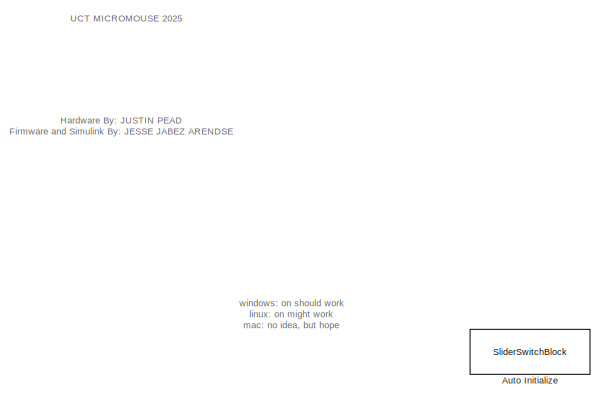
[diagram: root canvas - part 1/2, top left region]
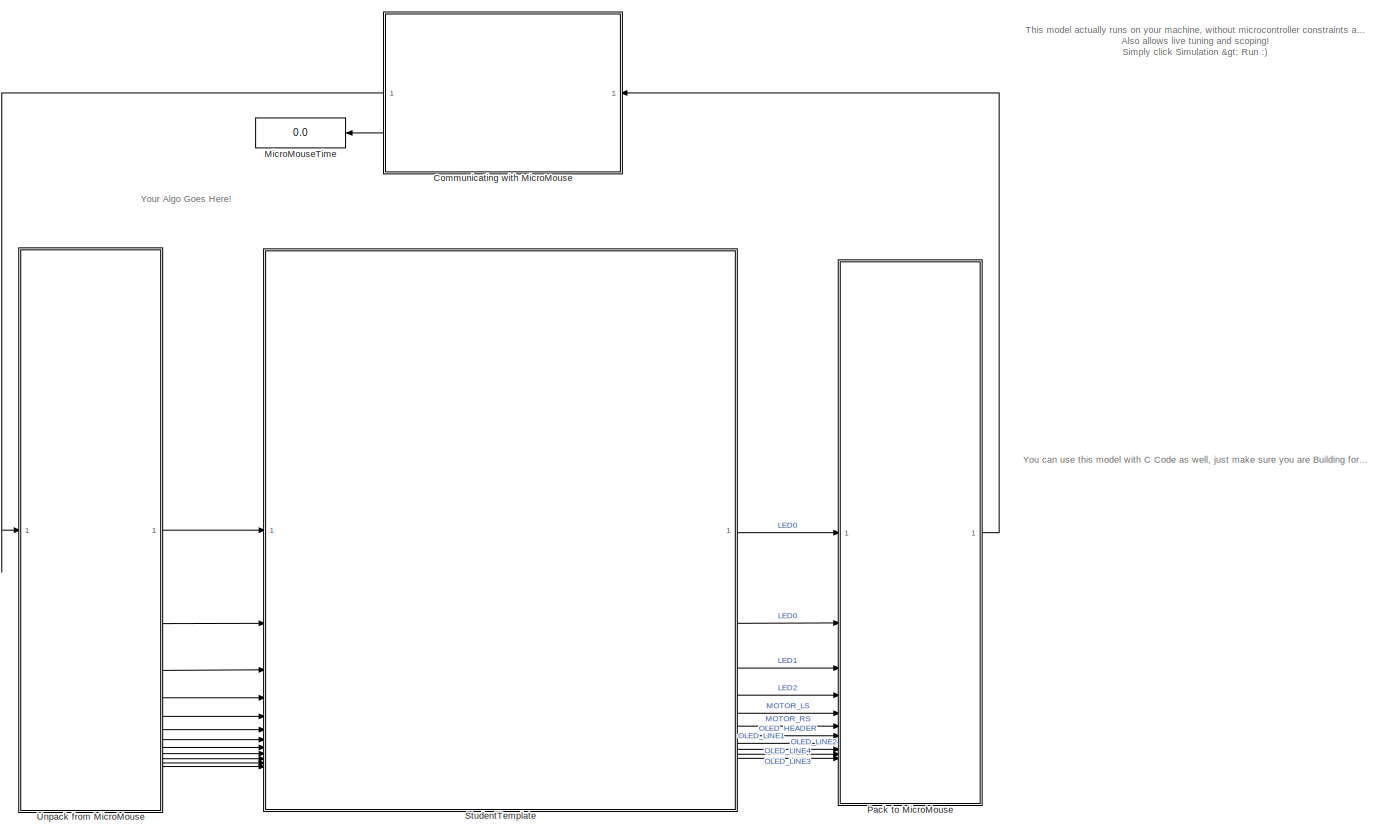
[diagram: root canvas - part 2/2, full width, middle band]
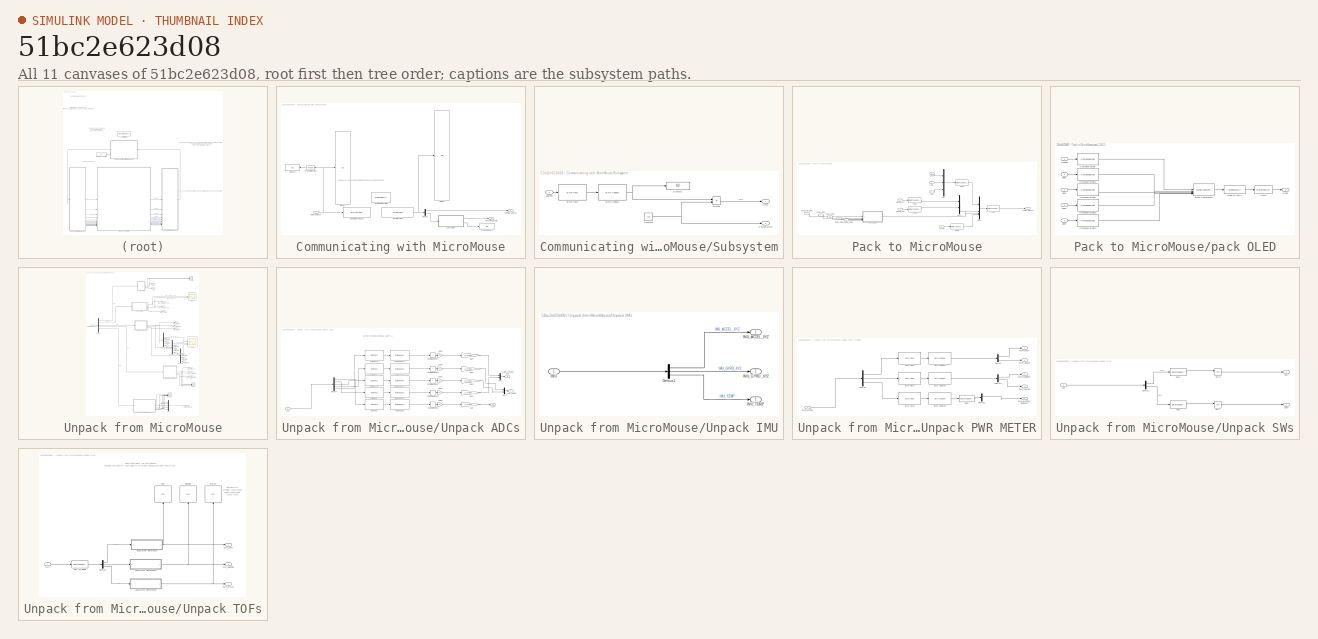
[diagram: thumbnail index - all 11 canvases of the model, root first then tree order]
MODEL slx_51bc2e623d08
KIND model
CONFIG AbsTol = auto
CONFIG EnableMultiTasking = off
CONFIG FixedStep = auto
CONFIG InitFcn = addpath(genpath(pwd));\nauto_program("MicroMouseProgramming_Code\build\release\MicroMouseProgramming")\nSTLINK_COMPORT = auto_COMPORT()\n\nclearvars -except STLINK_COMPORT STLINK_DRIVE STM32_ODR\n
CONFIG MaxStep = auto
CONFIG MinStep = auto
CONFIG PreLoadFcn = addpath(genpath(pwd))
CONFIG RelTol = 1e-3
CONFIG SampleTimeConstraint = Unconstrained
CONFIG SolverName = FixedStepAuto
CONFIG StartTime = 0.0
CONFIG StopTime = inf
BLOCK [SliderSwitchBlock] Auto Initialize
  LabelPosition = Hide
BLOCK [SubSystem] Communicating with MicroMouse
BLOCK [Demux] Communicating with MicroMouse/Demux1
  Outputs = [29 1]
BLOCK [Display] Communicating with MicroMouse/Display
  Decimation = 1
BLOCK [Display] Communicating with MicroMouse/Display1
  Decimation = 1
BLOCK [Display] Communicating with MicroMouse/Display2
  Decimation = 1
  NameLocation = top
BLOCK [Outport] Communicating with MicroMouse/MicroMouseTime
  Port = 2
BLOCK [Probe] Communicating with MicroMouse/Probe Dimension
  NameLocation = top
  ProbeComplexSignal = off
  ProbeSampleTime = off
  ProbeSignalDimensions = on
  ProbeWidth = off
BLOCK [Display] Communicating with MicroMouse/STM32 ODR (Hz)
  Decimation = 1
BLOCK [MATLABSystem] Communicating with MicroMouse/Send to MicroMouse
  ComPort = STLINK_COMPORT
  CustomTerminator = 'A_J'
  EnableBlockingMode = off
  Header = 'J_A'
  MaskType = CustomSerialSend
  PortSel = STLINK_COMPORT
  SimulateUsing = Interpreted execution
  System = CustomSerialSend
  Terminator = Custom terminator
BLOCK [Reference] Communicating with MicroMouse/Serial Configuration  REF=instrumentseriallib/Serial Configuration
  LibrarySourceBlock = embeddedtargetslib/Host Communication/Serial Configuration
  Priority = -200000
  SourceBlock = instrumentseriallib/Serial Configuration
  SourceType = system.SerialConfiguration
BLOCK [Reference] Communicating with MicroMouse/Serial Receive  REF=instrumentseriallib/Serial Receive
  LibrarySourceBlock = embeddedtargetslib/Host Communication/Serial Receive
  Priority = 1
  SourceBlock = instrumentseriallib/Serial Receive
  SourceType = system.SerialReceive
BLOCK [SubSystem] Communicating with MicroMouse/Subsystem
BLOCK [Reference] Communicating with MicroMouse/Subsystem/Byte Pack  REF=etargetslib/Byte Pack
  LibrarySourceBlock = embeddedtargetslib/Host Communication/Byte Pack
  SourceBlock = etargetslib/Byte Pack
  SourceType = Byte pack
BLOCK [Reference] Communicating with MicroMouse/Subsystem/Byte Unpack  REF=etargetslib/Byte Unpack
  LibrarySourceBlock = embeddedtargetslib/Host Communication/Byte Unpack
  SourceBlock = etargetslib/Byte Unpack
  SourceType = Byte Unpack
BLOCK [Constant] Communicating with MicroMouse/Subsystem/Constant
  Value = 100
BLOCK [Display] Communicating with MicroMouse/Subsystem/Display1
  Decimation = 1
BLOCK [Product] Communicating with MicroMouse/Subsystem/Divide
  Inputs = */
BLOCK [Outport] Communicating with MicroMouse/Subsystem/STM32_ODR
  Port = 2
BLOCK [Inport] Communicating with MicroMouse/Subsystem/counter
BLOCK [Outport] Communicating with MicroMouse/Subsystem/time
BLOCK [Outport] Communicating with MicroMouse/fromMicroMouse
BLOCK [Inport] Communicating with MicroMouse/toMicroMouse
BLOCK [Display] MicroMouseTime
  Decimation = 2
  NameLocation = top
BLOCK [SubSystem] Pack to MicroMouse
BLOCK [DataTypeConversion] Pack to MicroMouse/Cast
  NameLocation = top
  OutDataTypeStr = int8
  RndMeth = Floor
  SaturateOnIntegerOverflow = off
BLOCK [DataTypeConversion] Pack to MicroMouse/Cast1
  OutDataTypeStr = int8
  RndMeth = Floor
  SaturateOnIntegerOverflow = off
BLOCK [DataTypeConversion] Pack to MicroMouse/Cast2
  OutDataTypeStr = int8
  RndMeth = Floor
  SaturateOnIntegerOverflow = off
BLOCK [DataTypeConversion] Pack to MicroMouse/Cast3
  OutDataTypeStr = int8
  RndMeth = Floor
  SaturateOnIntegerOverflow = off
BLOCK [DataTypeConversion] Pack to MicroMouse/Cast4
  NameLocation = top
  OutDataTypeStr = int8
  RndMeth = Floor
  SaturateOnIntegerOverflow = off
BLOCK [Inport] Pack to MicroMouse/LED0
  Port = 2
BLOCK [Inport] Pack to MicroMouse/LED1
  Port = 3
BLOCK [Inport] Pack to MicroMouse/LED2
  Port = 4
BLOCK [Inport] Pack to MicroMouse/MOTOR_LS
  Port = 5
BLOCK [Inport] Pack to MicroMouse/MOTOR_RS
  Port = 6
BLOCK [Mux] Pack to MicroMouse/Mux
  DisplayOption = bar
  Inputs = 3
BLOCK [Mux] Pack to MicroMouse/Mux1
  DisplayOption = bar
BLOCK [Mux] Pack to MicroMouse/Mux2
  DisplayOption = bar
  Inputs = 2
BLOCK [Inport] Pack to MicroMouse/OLED_HEADER
  OutDataTypeStr = string
  Port = 7
  VarSizeSig = No
BLOCK [Inport] Pack to MicroMouse/OLED_LINE1
  OutDataTypeStr = string
  Port = 8
  VarSizeSig = No
BLOCK [Inport] Pack to MicroMouse/OLED_LINE2
  OutDataTypeStr = string
  Port = 9
  VarSizeSig = No
BLOCK [Inport] Pack to MicroMouse/OLED_LINE3
  OutDataTypeStr = string
  Port = 10
  VarSizeSig = No
BLOCK [Inport] Pack to MicroMouse/OLED_LINE4
  OutDataTypeStr = string
  Port = 11
  VarSizeSig = No
BLOCK [Inport] Pack to MicroMouse/STATE
BLOCK [Outport] Pack to MicroMouse/ToMicroMouse
  NameLocation = top
BLOCK [SubSystem] Pack to MicroMouse/pack OLED
BLOCK [DataTypeConversion] Pack to MicroMouse/pack OLED/Cast4
  OutDataTypeStr = int8
  RndMeth = Floor
  SaturateOnIntegerOverflow = off
BLOCK [ComposeString] Pack to MicroMouse/pack OLED/Compose String
  Format = "%-18s"
BLOCK [ComposeString] Pack to MicroMouse/pack OLED/Compose String1
  Format = "%-18s"
BLOCK [ComposeString] Pack to MicroMouse/pack OLED/Compose String2
  Format = "%-18s"
BLOCK [ComposeString] Pack to MicroMouse/pack OLED/Compose String3
  Format = "%-18s"
BLOCK [ComposeString] Pack to MicroMouse/pack OLED/Compose String4
  Format = "%-18s"
BLOCK [Inport] Pack to MicroMouse/pack OLED/Header
  PortDimensions = 1
BLOCK [Inport] Pack to MicroMouse/pack OLED/Line1
  Port = 2
BLOCK [Inport] Pack to MicroMouse/pack OLED/Line2
  Port = 3
BLOCK [Inport] Pack to MicroMouse/pack OLED/Line3
  Port = 4
BLOCK [Inport] Pack to MicroMouse/pack OLED/Line4
  Port = 5
BLOCK [Outport] Pack to MicroMouse/pack OLED/OLED
BLOCK [StringConcatenate] Pack to MicroMouse/pack OLED/String Concatenate
  Inputs = 5
BLOCK [StringToASCII] Pack to MicroMouse/pack OLED/String to ASCII
  OutputVectorSize = 18*5
BLOCK [SubSystem] StudentTemplate
  ReferencedSubsystem = StudentTemplate
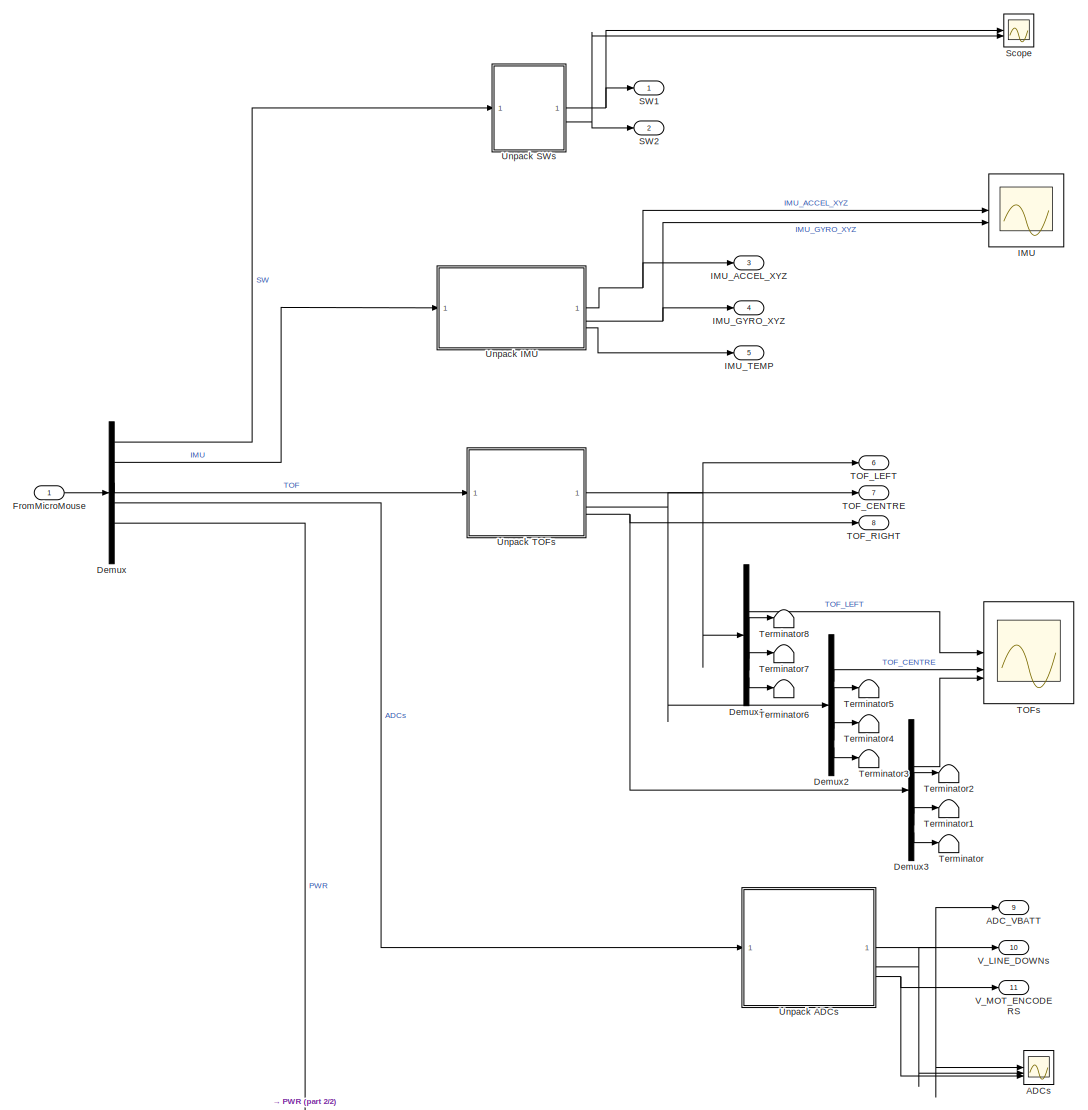
[diagram: Unpack from MicroMouse - part 1/2, most of the canvas]
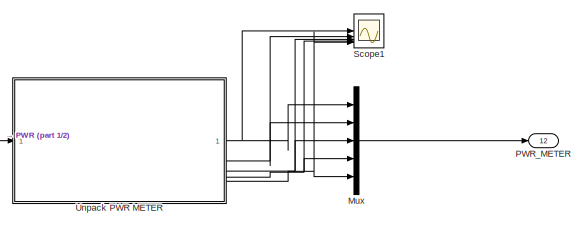
[diagram: Unpack from MicroMouse - part 2/2, bottom right region]
BLOCK [SubSystem] Unpack from MicroMouse
BLOCK [Outport] Unpack from MicroMouse/ADC_VBATT
  Port = 9
BLOCK [Scope] Unpack from MicroMouse/ADCs
  ActiveDisplayYMaximum = 3.14
  ActiveDisplayYMinimum = 3.13868
  DataLoggingVariableName = ScopeData1
  Floating = off
  GraphicalSettings = {"GraphicalSettings":{"LegacySettings":true,"Style":{"Style":{"AxesColor":"[0 0 0]","ChannelNames":["","",""],"ColorOrder":"[1 0.909803921568627 0.392156862745098;0.149019607843137 0.549019607843137 0.866666666666667;0.96078431372549 0.466666666666667 0.16078431372549;0.286274509803922 0.858823529411765 0.250980392156863;0.752941176470588 0.36078431372549 0.984313725490196;0.423529411764706 0.9568...<+560ch>
  LayoutDimensionsString = [3 1]
  MultipleDisplayCache = [{"MaxYLimMag":3.14,"MaxYLimReal":3.14,"MinYLimMag":3.13868,"MinYLimReal":3.13868,"PlotAsMagnitudePhase":false,"ShowGrid":true,"ShowLegend":false,"Title":"%<SignalLabel>","YLabel":""},{"MaxYLimMag":15269.52722,"MaxYLimReal":1.85537,"MinYLimMag":0,"MinYLimReal":-0.20615,"PlotAsMagnitudePhase":false,"ShowGrid":true,"ShowLegend":false,"Title":"%<SignalLabel>","YLabel":""},{"MaxYLimMag":15269.52722,"M...<+160ch>
  NumInputPorts = 3
  WasSavedAsWebScope = on
BLOCK [Demux] Unpack from MicroMouse/Demux
  Outputs = [2 7 3*4 5 3]
BLOCK [Demux] Unpack from MicroMouse/Demux1
BLOCK [Demux] Unpack from MicroMouse/Demux2
BLOCK [Demux] Unpack from MicroMouse/Demux3
BLOCK [Inport] Unpack from MicroMouse/FromMicroMouse
  NameLocation = top
BLOCK [Scope] Unpack from MicroMouse/IMU
  ActiveDisplayYMaximum = 196.12642
  ActiveDisplayYMinimum = -196.12162
  DataLoggingVariableName = ScopeData1
  Floating = off
  GraphicalSettings = {"GraphicalSettings":{"LegacySettings":true,"Style":{"AxesScalingProperties":{"ScaleAxesLimitsAtStop":false},"Style":{"AxesColor":"[0 0 0]","ChannelNames":["",""],"ColorOrder":"[1 0.909803921568627 0.392156862745098;0.149019607843137 0.549019607843137 0.866666666666667;0.96078431372549 0.466666666666667 0.16078431372549;0.286274509803922 0.858823529411765 0.250980392156863;0.752941176470588 0.3607...<+618ch>
  LayoutDimensionsString = [2 1]
  MultipleDisplayCache = [{"MaxYLimMag":196.12642,"MaxYLimReal":196.12642,"MinYLimMag":0,"MinYLimReal":-196.12162,"PlotAsMagnitudePhase":false,"ShowGrid":true,"ShowLegend":false,"Title":"%<SignalLabel>","YLabel":""},{"MaxYLimMag":20.09603,"MaxYLimReal":21.7946,"MinYLimMag":0,"MinYLimReal":-21.79407,"PlotAsMagnitudePhase":false,"ShowGrid":true,"ShowLegend":false,"Title":"%<SignalLabel>","YLabel":""}]
  NumInputPorts = 2
  WasSavedAsWebScope = on
BLOCK [Outport] Unpack from MicroMouse/IMU_ACCEL_XYZ
  Port = 3
BLOCK [Outport] Unpack from MicroMouse/IMU_GYRO_XYZ
  Port = 4
BLOCK [Outport] Unpack from MicroMouse/IMU_TEMP
  Port = 5
BLOCK [Mux] Unpack from MicroMouse/Mux
  DisplayOption = bar
  Inputs = 5
BLOCK [Outport] Unpack from MicroMouse/PWR_METER
  Port = 12
BLOCK [Outport] Unpack from MicroMouse/SW1
BLOCK [Outport] Unpack from MicroMouse/SW2
  Port = 2
BLOCK [Scope] Unpack from MicroMouse/Scope
  ActiveDisplayYMaximum = 1.1
  ActiveDisplayYMinimum = 0.9
  DataLoggingVariableName = ScopeData1
  Floating = off
  GraphicalSettings = {"GraphicalSettings":{"LegacySettings":true,"Style":{"Style":{"AxesColor":"[0 0 0]","ChannelNames":[""],"ColorOrder":"[1 0.909803921568627 0.392156862745098;0.149019607843137 0.549019607843137 0.866666666666667;0.96078431372549 0.466666666666667 0.16078431372549;0.286274509803922 0.858823529411765 0.250980392156863;0.752941176470588 0.36078431372549 0.984313725490196;0.423529411764706 0.9568627450...<+435ch>
  MultipleDisplayCache = [{"MaxYLimMag":1.1,"MaxYLimReal":1.1,"MinYLimMag":0.9,"MinYLimReal":0.9,"PlotAsMagnitudePhase":false,"ShowGrid":true,"ShowLegend":false,"Title":"%<SignalLabel>","YLabel":""}]
  NumInputPorts = 2
  WasSavedAsWebScope = on
BLOCK [Scope] Unpack from MicroMouse/Scope1
  ActiveDisplayYMaximum = 30696.125
  ActiveDisplayYMinimum = 864.875
  DataLoggingVariableName = ScopeData2
  Floating = off
  GraphicalSettings = {"GraphicalSettings":{"LegacySettings":true,"Style":{"Style":{"AxesColor":"[0 0 0]","ChannelNames":["","","","","",""],"ColorOrder":"[1 0.909803921568627 0.392156862745098;0.149019607843137 0.549019607843137 0.866666666666667;0.96078431372549 0.466666666666667 0.16078431372549;0.286274509803922 0.858823529411765 0.250980392156863;0.752941176470588 0.36078431372549 0.984313725490196;0.4235294117647...<+644ch>
  LayoutDimensionsString = [2 3]
  MultipleDisplayCache = [{"MaxYLimMag":30696.125,"MaxYLimReal":30696.125,"MinYLimMag":864.875,"MinYLimReal":864.875,"PlotAsMagnitudePhase":false,"ShowGrid":true,"ShowLegend":true,"Title":"%<SignalLabel>","YLabel":""},{"MaxYLimMag":3990.375,"MaxYLimReal":24.5,"MinYLimMag":0,"MinYLimReal":-0.5,"PlotAsMagnitudePhase":false,"ShowGrid":true,"ShowLegend":true,"Title":"%<SignalLabel>","YLabel":""},{"MaxYLimMag":3990.375,"MaxYLi...<+683ch>
  NumInputPorts = 5
  ShowLegend = on
  WasSavedAsWebScope = on
BLOCK [Outport] Unpack from MicroMouse/TOF_CENTRE
  Port = 7
BLOCK [Outport] Unpack from MicroMouse/TOF_LEFT
  Port = 6
BLOCK [Outport] Unpack from MicroMouse/TOF_RIGHT
  Port = 8
BLOCK [Scope] Unpack from MicroMouse/TOFs
  ActiveDisplayYMaximum = 0.44888
  ActiveDisplayYMinimum = 0.02013
  DataLoggingVariableName = ScopeData1
  Floating = off
  GraphicalSettings = {"GraphicalSettings":{"LegacySettings":true,"Style":{"AxesScalingProperties":{"ScaleAxesLimitsAtStop":false},"Style":{"AxesColor":"[0 0 0]","ChannelNames":["","",""],"ColorOrder":"[1 0.909803921568627 0.392156862745098;0.149019607843137 0.549019607843137 0.866666666666667;0.96078431372549 0.466666666666667 0.16078431372549;0.286274509803922 0.858823529411765 0.250980392156863;0.752941176470588 0.3...<+633ch>
  LayoutDimensionsString = [3 1]
  MultipleDisplayCache = [{"MaxYLimMag":0.44888,"MaxYLimReal":0.44888,"MinYLimMag":0.02013,"MinYLimReal":0.02013,"PlotAsMagnitudePhase":false,"ShowGrid":true,"ShowLegend":false,"Title":"%<SignalLabel>","YLabel":""},{"MaxYLimMag":0.18013,"MaxYLimReal":0.27338,"MinYLimMag":0.02887,"MinYLimReal":0.01963,"PlotAsMagnitudePhase":false,"ShowGrid":true,"ShowLegend":false,"Title":"%<SignalLabel>","YLabel":""},{"MaxYLimMag":0.18013...<+166ch>
  NumInputPorts = 3
  WasSavedAsWebScope = on
BLOCK [Terminator] Unpack from MicroMouse/Terminator
BLOCK [Terminator] Unpack from MicroMouse/Terminator1
BLOCK [Terminator] Unpack from MicroMouse/Terminator2
BLOCK [Terminator] Unpack from MicroMouse/Terminator3
BLOCK [Terminator] Unpack from MicroMouse/Terminator4
BLOCK [Terminator] Unpack from MicroMouse/Terminator5
BLOCK [Terminator] Unpack from MicroMouse/Terminator6
BLOCK [Terminator] Unpack from MicroMouse/Terminator7
BLOCK [Terminator] Unpack from MicroMouse/Terminator8
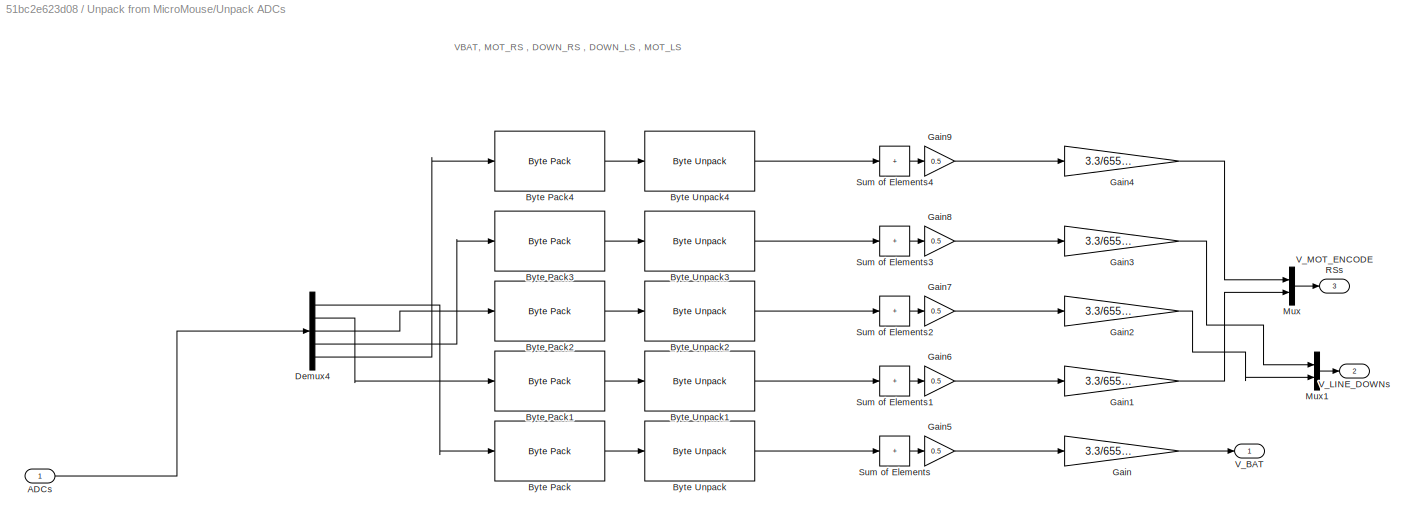
BLOCK [SubSystem] Unpack from MicroMouse/Unpack ADCs
BLOCK [Inport] Unpack from MicroMouse/Unpack ADCs/ADCs
  NameLocation = top
BLOCK [Reference] Unpack from MicroMouse/Unpack ADCs/Byte Pack  REF=etargetslib/Byte Pack
  LibrarySourceBlock = embeddedtargetslib/Host Communication/Byte Pack
  SourceBlock = etargetslib/Byte Pack
  SourceType = Byte pack
BLOCK [Reference] Unpack from MicroMouse/Unpack ADCs/Byte Pack1  REF=etargetslib/Byte Pack
  LibrarySourceBlock = embeddedtargetslib/Host Communication/Byte Pack
  SourceBlock = etargetslib/Byte Pack
  SourceType = Byte pack
BLOCK [Reference] Unpack from MicroMouse/Unpack ADCs/Byte Pack2  REF=etargetslib/Byte Pack
  LibrarySourceBlock = embeddedtargetslib/Host Communication/Byte Pack
  SourceBlock = etargetslib/Byte Pack
  SourceType = Byte pack
BLOCK [Reference] Unpack from MicroMouse/Unpack ADCs/Byte Pack3  REF=etargetslib/Byte Pack
  LibrarySourceBlock = embeddedtargetslib/Host Communication/Byte Pack
  SourceBlock = etargetslib/Byte Pack
  SourceType = Byte pack
BLOCK [Reference] Unpack from MicroMouse/Unpack ADCs/Byte Pack4  REF=etargetslib/Byte Pack
  LibrarySourceBlock = embeddedtargetslib/Host Communication/Byte Pack
  SourceBlock = etargetslib/Byte Pack
  SourceType = Byte pack
BLOCK [Reference] Unpack from MicroMouse/Unpack ADCs/Byte Unpack  REF=etargetslib/Byte Unpack
  LibrarySourceBlock = embeddedtargetslib/Host Communication/Byte Unpack
  SourceBlock = etargetslib/Byte Unpack
  SourceType = Byte Unpack
BLOCK [Reference] Unpack from MicroMouse/Unpack ADCs/Byte Unpack1  REF=etargetslib/Byte Unpack
  LibrarySourceBlock = embeddedtargetslib/Host Communication/Byte Unpack
  SourceBlock = etargetslib/Byte Unpack
  SourceType = Byte Unpack
BLOCK [Reference] Unpack from MicroMouse/Unpack ADCs/Byte Unpack2  REF=etargetslib/Byte Unpack
  LibrarySourceBlock = embeddedtargetslib/Host Communication/Byte Unpack
  SourceBlock = etargetslib/Byte Unpack
  SourceType = Byte Unpack
BLOCK [Reference] Unpack from MicroMouse/Unpack ADCs/Byte Unpack3  REF=etargetslib/Byte Unpack
  LibrarySourceBlock = embeddedtargetslib/Host Communication/Byte Unpack
  SourceBlock = etargetslib/Byte Unpack
  SourceType = Byte Unpack
BLOCK [Reference] Unpack from MicroMouse/Unpack ADCs/Byte Unpack4  REF=etargetslib/Byte Unpack
  LibrarySourceBlock = embeddedtargetslib/Host Communication/Byte Unpack
  SourceBlock = etargetslib/Byte Unpack
  SourceType = Byte Unpack
BLOCK [Demux] Unpack from MicroMouse/Unpack ADCs/Demux4
  Outputs = 5
BLOCK [Gain] Unpack from MicroMouse/Unpack ADCs/Gain
  Gain = 3.3/65535 * 3
BLOCK [Gain] Unpack from MicroMouse/Unpack ADCs/Gain1
  Gain = 3.3/65535
BLOCK [Gain] Unpack from MicroMouse/Unpack ADCs/Gain2
  Gain = 3.3/65535
BLOCK [Gain] Unpack from MicroMouse/Unpack ADCs/Gain3
  Gain = 3.3/65535
BLOCK [Gain] Unpack from MicroMouse/Unpack ADCs/Gain4
  Gain = 3.3/65535
BLOCK [Gain] Unpack from MicroMouse/Unpack ADCs/Gain5
  Gain = 0.5
BLOCK [Gain] Unpack from MicroMouse/Unpack ADCs/Gain6
  Gain = 0.5
BLOCK [Gain] Unpack from MicroMouse/Unpack ADCs/Gain7
  Gain = 0.5
BLOCK [Gain] Unpack from MicroMouse/Unpack ADCs/Gain8
  Gain = 0.5
BLOCK [Gain] Unpack from MicroMouse/Unpack ADCs/Gain9
  Gain = 0.5
BLOCK [Mux] Unpack from MicroMouse/Unpack ADCs/Mux
  DisplayOption = bar
  Inputs = 2
BLOCK [Mux] Unpack from MicroMouse/Unpack ADCs/Mux1
  DisplayOption = bar
  Inputs = 2
BLOCK [Sum] Unpack from MicroMouse/Unpack ADCs/Sum of Elements
  IconShape = rectangular
  Inputs = +
BLOCK [Sum] Unpack from MicroMouse/Unpack ADCs/Sum of Elements1
  IconShape = rectangular
  Inputs = +
BLOCK [Sum] Unpack from MicroMouse/Unpack ADCs/Sum of Elements2
  IconShape = rectangular
  Inputs = +
BLOCK [Sum] Unpack from MicroMouse/Unpack ADCs/Sum of Elements3
  IconShape = rectangular
  Inputs = +
BLOCK [Sum] Unpack from MicroMouse/Unpack ADCs/Sum of Elements4
  IconShape = rectangular
  Inputs = +
BLOCK [Outport] Unpack from MicroMouse/Unpack ADCs/V_BAT
  NameLocation = right
BLOCK [Outport] Unpack from MicroMouse/Unpack ADCs/V_LINE_DOWNs
  NameLocation = right
  Port = 2
BLOCK [Outport] Unpack from MicroMouse/Unpack ADCs/V_MOT_ENCODERSs
  NameLocation = right
  Port = 3
BLOCK [SubSystem] Unpack from MicroMouse/Unpack IMU
BLOCK [Demux] Unpack from MicroMouse/Unpack IMU/Demux1
  Outputs = [3 3 1]
BLOCK [Inport] Unpack from MicroMouse/Unpack IMU/IMU
  NameLocation = top
BLOCK [Outport] Unpack from MicroMouse/Unpack IMU/IMU_ACCEL_XYZ
  NameLocation = top
BLOCK [Outport] Unpack from MicroMouse/Unpack IMU/IMU_GYRO_XYZ
  NameLocation = top
  Port = 2
BLOCK [Outport] Unpack from MicroMouse/Unpack IMU/IMU_TEMP
  NameLocation = top
  Port = 3
BLOCK [SubSystem] Unpack from MicroMouse/Unpack PWR METER
BLOCK [Reference] Unpack from MicroMouse/Unpack PWR METER/Byte Pack  REF=etargetslib/Byte Pack
  SourceBlock = etargetslib/Byte Pack
  SourceType = Byte pack
BLOCK [Reference] Unpack from MicroMouse/Unpack PWR METER/Byte Pack1  REF=etargetslib/Byte Pack
  SourceBlock = etargetslib/Byte Pack
  SourceType = Byte pack
BLOCK [Reference] Unpack from MicroMouse/Unpack PWR METER/Byte Pack2  REF=etargetslib/Byte Pack
  SourceBlock = etargetslib/Byte Pack
  SourceType = Byte pack
BLOCK [Reference] Unpack from MicroMouse/Unpack PWR METER/Byte Unpack  REF=etargetslib/Byte Unpack
  SourceBlock = etargetslib/Byte Unpack
  SourceType = Byte Unpack
BLOCK [Reference] Unpack from MicroMouse/Unpack PWR METER/Byte Unpack1  REF=etargetslib/Byte Unpack
  SourceBlock = etargetslib/Byte Unpack
  SourceType = Byte Unpack
BLOCK [Reference] Unpack from MicroMouse/Unpack PWR METER/Byte Unpack2  REF=etargetslib/Byte Unpack
  SourceBlock = etargetslib/Byte Unpack
  SourceType = Byte Unpack
BLOCK [DataTypeConversion] Unpack from MicroMouse/Unpack PWR METER/Cast
  OutDataTypeStr = int16
  RndMeth = Floor
  SaturateOnIntegerOverflow = off
BLOCK [Demux] Unpack from MicroMouse/Unpack PWR METER/Demux
  Outputs = 2
BLOCK [Demux] Unpack from MicroMouse/Unpack PWR METER/Demux1
  Outputs = 2
BLOCK [Demux] Unpack from MicroMouse/Unpack PWR METER/Demux2
BLOCK [Demux] Unpack from MicroMouse/Unpack PWR METER/Demux4
  Outputs = 3
BLOCK [Outport] Unpack from MicroMouse/Unpack PWR METER/PWR_BATTERY_PERCENT
  Port = 5
BLOCK [Outport] Unpack from MicroMouse/Unpack PWR METER/PWR_CURRENT
  Port = 3
BLOCK [Inport] Unpack from MicroMouse/Unpack PWR METER/PWR_METER
  NameLocation = top
BLOCK [Outport] Unpack from MicroMouse/Unpack PWR METER/PWR_POWER
  Port = 4
BLOCK [Outport] Unpack from MicroMouse/Unpack PWR METER/PWR_VBATT
BLOCK [Outport] Unpack from MicroMouse/Unpack PWR METER/PWR_VSHUNT
  Port = 2
BLOCK [SubSystem] Unpack from MicroMouse/Unpack SWs
BLOCK [DataTypeConversion] Unpack from MicroMouse/Unpack SWs/Cast
  OutDataTypeStr = boolean
  RndMeth = Floor
  SaturateOnIntegerOverflow = off
BLOCK [DataTypeConversion] Unpack from MicroMouse/Unpack SWs/Cast1
  OutDataTypeStr = boolean
  RndMeth = Floor
  SaturateOnIntegerOverflow = off
BLOCK [Demux] Unpack from MicroMouse/Unpack SWs/Demux1
  Outputs = 2
BLOCK [Logic] Unpack from MicroMouse/Unpack SWs/NOT
  AllPortsSameDT = off
  IconShape = distinctive
  Operator = NOT
  OutDataTypeStr = boolean
BLOCK [Logic] Unpack from MicroMouse/Unpack SWs/NOT1
  AllPortsSameDT = off
  IconShape = distinctive
  Operator = NOT
  OutDataTypeStr = boolean
BLOCK [Inport] Unpack from MicroMouse/Unpack SWs/SW
  NameLocation = top
BLOCK [Outport] Unpack from MicroMouse/Unpack SWs/SW1
  NameLocation = top
BLOCK [Outport] Unpack from MicroMouse/Unpack SWs/SW2
  NameLocation = top
  Port = 2
BLOCK [SubSystem] Unpack from MicroMouse/Unpack TOFs
BLOCK [Display] Unpack from MicroMouse/Unpack TOFs/CENTRE
  Decimation = 1
  NameLocation = top
BLOCK [DataTypeConversion] Unpack from MicroMouse/Unpack TOFs/Cast To Single
  NameLocation = top
  OutDataTypeStr = single
  RndMeth = Floor
  SaturateOnIntegerOverflow = off
BLOCK [Demux] Unpack from MicroMouse/Unpack TOFs/Demux1
  Outputs = [4 4 4]
BLOCK [Display] Unpack from MicroMouse/Unpack TOFs/LEFT
  Decimation = 1
  NameLocation = top
BLOCK [Display] Unpack from MicroMouse/Unpack TOFs/RIGHT
  Decimation = 1
  NameLocation = top
BLOCK [SubSystem] Unpack from MicroMouse/Unpack TOFs/Subsystem Reference
  ReferencedSubsystem = unpack_ToF
BLOCK [SubSystem] Unpack from MicroMouse/Unpack TOFs/Subsystem Reference1
  ReferencedSubsystem = unpack_ToF
BLOCK [SubSystem] Unpack from MicroMouse/Unpack TOFs/Subsystem Reference2
  ReferencedSubsystem = unpack_ToF
BLOCK [Inport] Unpack from MicroMouse/Unpack TOFs/TOF
  NameLocation = top
BLOCK [Outport] Unpack from MicroMouse/Unpack TOFs/TOF_CENTRE
  NameLocation = top
  Port = 2
BLOCK [Outport] Unpack from MicroMouse/Unpack TOFs/TOF_LEFT
  NameLocation = top
BLOCK [Outport] Unpack from MicroMouse/Unpack TOFs/TOF_RIGHT
  NameLocation = top
  Port = 3
BLOCK [Outport] Unpack from MicroMouse/V_LINE_DOWNs
  Port = 10
BLOCK [Outport] Unpack from MicroMouse/V_MOT_ENCODERS
  Port = 11
ANNOTATION (root): Hardware By: JUSTIN PEAD Firmware and Simulink By: JESSE JABEZ ARENDSE
ANNOTATION (root): This model actually runs on your machine, without microcontroller constraints and WAY faster to develop with! Also allows live tuning and scoping! Simply click Simulation > Run :)
ANNOTATION (root): You can use this model with C Code as well, just make sure you are Building for Release :)
ANNOTATION (root): UCT MICROMOUSE 2025
ANNOTATION (root): windows: on should work linux: on might work mac: no idea, but hope
ANNOTATION (root): Your Algo Goes Here!
ANNOTATION Communicating with MicroMouse: change your COMx number to match the one in your device manager
ANNOTATION Unpack from MicroMouse/Unpack ADCs: VBAT, MOT_RS , DOWN_RS , DOWN_LS , MOT_LS
ANNOTATION Unpack from MicroMouse/Unpack TOFs: Everything about the ToF sensors Probably only useful if you're going to do proper filtering and need some trust coefficients
ANNOTATION Unpack from MicroMouse/Unpack TOFs: distance [m] ambient [kcps/spad] signal [kcps/spad] status [eh?]
LINE Communicating with MicroMouse/Demux1:1 -> Communicating with MicroMouse/fromMicroMouse:1
LINE Communicating with MicroMouse/Demux1:2 -> Communicating with MicroMouse/Subsystem:1
LINE Communicating with MicroMouse/Probe Dimension:1 -> Communicating with MicroMouse/Display2:1
NET Communicating with MicroMouse/Serial Receive:1 -> Communicating with MicroMouse/Demux1:1, Communicating with MicroMouse/Display:1
LINE Communicating with MicroMouse/Subsystem/Byte Pack:1 -> Communicating with MicroMouse/Subsystem/Byte Unpack:1
NET Communicating with MicroMouse/Subsystem/Byte Unpack:1 -> Communicating with MicroMouse/Subsystem/Display1:1, Communicating with MicroMouse/Subsystem/Divide:1
NET Communicating with MicroMouse/Subsystem/Constant:1 -> Communicating with MicroMouse/Subsystem/Divide:2, Communicating with MicroMouse/Subsystem/STM32_ODR:1
LINE Communicating with MicroMouse/Subsystem/Divide:1 -> Communicating with MicroMouse/Subsystem/time:1
LINE Communicating with MicroMouse/Subsystem/counter:1 -> Communicating with MicroMouse/Subsystem/Byte Pack:1
LINE Communicating with MicroMouse/Subsystem:1 -> Communicating with MicroMouse/MicroMouseTime:1
LINE Communicating with MicroMouse/Subsystem:2 -> Communicating with MicroMouse/STM32 ODR (Hz):1
NET Communicating with MicroMouse/toMicroMouse:1 -> Communicating with MicroMouse/Display1:1, Communicating with MicroMouse/Probe Dimension:1, Communicating with MicroMouse/Send to MicroMouse:1
LINE Communicating with MicroMouse:1 -> Unpack from MicroMouse:1
LINE Communicating with MicroMouse:2 -> MicroMouseTime:1
LINE Pack to MicroMouse/Cast1:1 -> Pack to MicroMouse/Mux2:1
LINE Pack to MicroMouse/Cast2:1 -> Pack to MicroMouse/Mux2:2
LINE Pack to MicroMouse/Cast3:1 -> Pack to MicroMouse/Mux1:1
LINE Pack to MicroMouse/Cast4:1 -> Pack to MicroMouse/Mux1:4
LINE Pack to MicroMouse/Cast:1 -> Pack to MicroMouse/ToMicroMouse:1
LINE Pack to MicroMouse/LED0:1 -> Pack to MicroMouse/Mux:1
LINE Pack to MicroMouse/LED1:1 -> Pack to MicroMouse/Mux:2
LINE Pack to MicroMouse/LED2:1 -> Pack to MicroMouse/Mux:3
LINE Pack to MicroMouse/MOTOR_LS:1 -> Pack to MicroMouse/Cast1:1
LINE Pack to MicroMouse/MOTOR_RS:1 -> Pack to MicroMouse/Cast2:1
LINE Pack to MicroMouse/Mux1:1 -> Pack to MicroMouse/Cast:1
LINE Pack to MicroMouse/Mux2:1 -> Pack to MicroMouse/Mux1:2
LINE Pack to MicroMouse/Mux:1 -> Pack to MicroMouse/Cast3:1
LINE Pack to MicroMouse/OLED_HEADER:1 -> Pack to MicroMouse/pack OLED:1
LINE Pack to MicroMouse/OLED_LINE1:1 -> Pack to MicroMouse/pack OLED:2
LINE Pack to MicroMouse/OLED_LINE2:1 -> Pack to MicroMouse/pack OLED:3
LINE Pack to MicroMouse/OLED_LINE3:1 -> Pack to MicroMouse/pack OLED:4
LINE Pack to MicroMouse/OLED_LINE4:1 -> Pack to MicroMouse/pack OLED:5
LINE Pack to MicroMouse/STATE:1 -> Pack to MicroMouse/Cast4:1
LINE Pack to MicroMouse/pack OLED/Cast4:1 -> Pack to MicroMouse/pack OLED/OLED:1
LINE Pack to MicroMouse/pack OLED/Compose String1:1 -> Pack to MicroMouse/pack OLED/String Concatenate:2
LINE Pack to MicroMouse/pack OLED/Compose String2:1 -> Pack to MicroMouse/pack OLED/String Concatenate:3
LINE Pack to MicroMouse/pack OLED/Compose String3:1 -> Pack to MicroMouse/pack OLED/String Concatenate:4
LINE Pack to MicroMouse/pack OLED/Compose String4:1 -> Pack to MicroMouse/pack OLED/String Concatenate:5
LINE Pack to MicroMouse/pack OLED/Compose String:1 -> Pack to MicroMouse/pack OLED/String Concatenate:1
LINE Pack to MicroMouse/pack OLED/Header:1 -> Pack to MicroMouse/pack OLED/Compose String:1
LINE Pack to MicroMouse/pack OLED/Line1:1 -> Pack to MicroMouse/pack OLED/Compose String1:1
LINE Pack to MicroMouse/pack OLED/Line2:1 -> Pack to MicroMouse/pack OLED/Compose String2:1
LINE Pack to MicroMouse/pack OLED/Line3:1 -> Pack to MicroMouse/pack OLED/Compose String3:1
LINE Pack to MicroMouse/pack OLED/Line4:1 -> Pack to MicroMouse/pack OLED/Compose String4:1
LINE Pack to MicroMouse/pack OLED/String Concatenate:1 -> Pack to MicroMouse/pack OLED/String to ASCII:1
LINE Pack to MicroMouse/pack OLED/String to ASCII:1 -> Pack to MicroMouse/pack OLED/Cast4:1
LINE Pack to MicroMouse/pack OLED:1 -> Pack to MicroMouse/Mux1:3
LINE Pack to MicroMouse:1 -> Communicating with MicroMouse:1
LINE StudentTemplate:1 -> Pack to MicroMouse:1
LINE StudentTemplate:10 -> Pack to MicroMouse:10
LINE StudentTemplate:11 -> Pack to MicroMouse:11
LINE StudentTemplate:2 -> Pack to MicroMouse:2
LINE StudentTemplate:3 -> Pack to MicroMouse:3
LINE StudentTemplate:4 -> Pack to MicroMouse:4
LINE StudentTemplate:5 -> Pack to MicroMouse:5
LINE StudentTemplate:6 -> Pack to MicroMouse:6
LINE StudentTemplate:7 -> Pack to MicroMouse:7
LINE StudentTemplate:8 -> Pack to MicroMouse:8
LINE StudentTemplate:9 -> Pack to MicroMouse:9
LINE Unpack from MicroMouse/Demux1:1 -> Unpack from MicroMouse/TOFs:1
LINE Unpack from MicroMouse/Demux1:2 -> Unpack from MicroMouse/Terminator8:1
LINE Unpack from MicroMouse/Demux1:3 -> Unpack from MicroMouse/Terminator7:1
LINE Unpack from MicroMouse/Demux1:4 -> Unpack from MicroMouse/Terminator6:1
LINE Unpack from MicroMouse/Demux2:1 -> Unpack from MicroMouse/TOFs:2
LINE Unpack from MicroMouse/Demux2:2 -> Unpack from MicroMouse/Terminator5:1
LINE Unpack from MicroMouse/Demux2:3 -> Unpack from MicroMouse/Terminator4:1
LINE Unpack from MicroMouse/Demux2:4 -> Unpack from MicroMouse/Terminator3:1
LINE Unpack from MicroMouse/Demux3:1 -> Unpack from MicroMouse/TOFs:3
LINE Unpack from MicroMouse/Demux3:2 -> Unpack from MicroMouse/Terminator2:1
LINE Unpack from MicroMouse/Demux3:3 -> Unpack from MicroMouse/Terminator1:1
LINE Unpack from MicroMouse/Demux3:4 -> Unpack from MicroMouse/Terminator:1
LINE Unpack from MicroMouse/Demux:1 -> Unpack from MicroMouse/Unpack SWs:1
LINE Unpack from MicroMouse/Demux:2 -> Unpack from MicroMouse/Unpack IMU:1
LINE Unpack from MicroMouse/Demux:3 -> Unpack from MicroMouse/Unpack TOFs:1
LINE Unpack from MicroMouse/Demux:4 -> Unpack from MicroMouse/Unpack ADCs:1
LINE Unpack from MicroMouse/Demux:5 -> Unpack from MicroMouse/Unpack PWR METER:1
LINE Unpack from MicroMouse/FromMicroMouse:1 -> Unpack from MicroMouse/Demux:1
LINE Unpack from MicroMouse/Mux:1 -> Unpack from MicroMouse/PWR_METER:1
LINE Unpack from MicroMouse/Unpack ADCs/ADCs:1 -> Unpack from MicroMouse/Unpack ADCs/Demux4:1
LINE Unpack from MicroMouse/Unpack ADCs/Byte Pack1:1 -> Unpack from MicroMouse/Unpack ADCs/Byte Unpack1:1
LINE Unpack from MicroMouse/Unpack ADCs/Byte Pack2:1 -> Unpack from MicroMouse/Unpack ADCs/Byte Unpack2:1
LINE Unpack from MicroMouse/Unpack ADCs/Byte Pack3:1 -> Unpack from MicroMouse/Unpack ADCs/Byte Unpack3:1
LINE Unpack from MicroMouse/Unpack ADCs/Byte Pack4:1 -> Unpack from MicroMouse/Unpack ADCs/Byte Unpack4:1
LINE Unpack from MicroMouse/Unpack ADCs/Byte Pack:1 -> Unpack from MicroMouse/Unpack ADCs/Byte Unpack:1
LINE Unpack from MicroMouse/Unpack ADCs/Byte Unpack1:1 -> Unpack from MicroMouse/Unpack ADCs/Sum of Elements1:1
LINE Unpack from MicroMouse/Unpack ADCs/Byte Unpack2:1 -> Unpack from MicroMouse/Unpack ADCs/Sum of Elements2:1
LINE Unpack from MicroMouse/Unpack ADCs/Byte Unpack3:1 -> Unpack from MicroMouse/Unpack ADCs/Sum of Elements3:1
LINE Unpack from MicroMouse/Unpack ADCs/Byte Unpack4:1 -> Unpack from MicroMouse/Unpack ADCs/Sum of Elements4:1
LINE Unpack from MicroMouse/Unpack ADCs/Byte Unpack:1 -> Unpack from MicroMouse/Unpack ADCs/Sum of Elements:1
LINE Unpack from MicroMouse/Unpack ADCs/Demux4:1 -> Unpack from MicroMouse/Unpack ADCs/Byte Pack:1
LINE Unpack from MicroMouse/Unpack ADCs/Demux4:2 -> Unpack from MicroMouse/Unpack ADCs/Byte Pack1:1
LINE Unpack from MicroMouse/Unpack ADCs/Demux4:3 -> Unpack from MicroMouse/Unpack ADCs/Byte Pack2:1
LINE Unpack from MicroMouse/Unpack ADCs/Demux4:4 -> Unpack from MicroMouse/Unpack ADCs/Byte Pack3:1
LINE Unpack from MicroMouse/Unpack ADCs/Demux4:5 -> Unpack from MicroMouse/Unpack ADCs/Byte Pack4:1
LINE Unpack from MicroMouse/Unpack ADCs/Gain1:1 -> Unpack from MicroMouse/Unpack ADCs/Mux:2
LINE Unpack from MicroMouse/Unpack ADCs/Gain2:1 -> Unpack from MicroMouse/Unpack ADCs/Mux1:2
LINE Unpack from MicroMouse/Unpack ADCs/Gain3:1 -> Unpack from MicroMouse/Unpack ADCs/Mux1:1
LINE Unpack from MicroMouse/Unpack ADCs/Gain4:1 -> Unpack from MicroMouse/Unpack ADCs/Mux:1
LINE Unpack from MicroMouse/Unpack ADCs/Gain5:1 -> Unpack from MicroMouse/Unpack ADCs/Gain:1
LINE Unpack from MicroMouse/Unpack ADCs/Gain6:1 -> Unpack from MicroMouse/Unpack ADCs/Gain1:1
LINE Unpack from MicroMouse/Unpack ADCs/Gain7:1 -> Unpack from MicroMouse/Unpack ADCs/Gain2:1
LINE Unpack from MicroMouse/Unpack ADCs/Gain8:1 -> Unpack from MicroMouse/Unpack ADCs/Gain3:1
LINE Unpack from MicroMouse/Unpack ADCs/Gain9:1 -> Unpack from MicroMouse/Unpack ADCs/Gain4:1
LINE Unpack from MicroMouse/Unpack ADCs/Gain:1 -> Unpack from MicroMouse/Unpack ADCs/V_BAT:1
LINE Unpack from MicroMouse/Unpack ADCs/Mux1:1 -> Unpack from MicroMouse/Unpack ADCs/V_LINE_DOWNs:1
LINE Unpack from MicroMouse/Unpack ADCs/Mux:1 -> Unpack from MicroMouse/Unpack ADCs/V_MOT_ENCODERSs:1
LINE Unpack from MicroMouse/Unpack ADCs/Sum of Elements1:1 -> Unpack from MicroMouse/Unpack ADCs/Gain6:1
LINE Unpack from MicroMouse/Unpack ADCs/Sum of Elements2:1 -> Unpack from MicroMouse/Unpack ADCs/Gain7:1
LINE Unpack from MicroMouse/Unpack ADCs/Sum of Elements3:1 -> Unpack from MicroMouse/Unpack ADCs/Gain8:1
LINE Unpack from MicroMouse/Unpack ADCs/Sum of Elements4:1 -> Unpack from MicroMouse/Unpack ADCs/Gain9:1
LINE Unpack from MicroMouse/Unpack ADCs/Sum of Elements:1 -> Unpack from MicroMouse/Unpack ADCs/Gain5:1
NET Unpack from MicroMouse/Unpack ADCs:1 -> Unpack from MicroMouse/ADC_VBATT:1, Unpack from MicroMouse/ADCs:1
NET Unpack from MicroMouse/Unpack ADCs:2 -> Unpack from MicroMouse/ADCs:2, Unpack from MicroMouse/V_LINE_DOWNs:1
NET Unpack from MicroMouse/Unpack ADCs:3 -> Unpack from MicroMouse/ADCs:3, Unpack from MicroMouse/V_MOT_ENCODERS:1
LINE Unpack from MicroMouse/Unpack IMU/Demux1:1 -> Unpack from MicroMouse/Unpack IMU/IMU_ACCEL_XYZ:1
LINE Unpack from MicroMouse/Unpack IMU/Demux1:2 -> Unpack from MicroMouse/Unpack IMU/IMU_GYRO_XYZ:1
LINE Unpack from MicroMouse/Unpack IMU/Demux1:3 -> Unpack from MicroMouse/Unpack IMU/IMU_TEMP:1
LINE Unpack from MicroMouse/Unpack IMU/IMU:1 -> Unpack from MicroMouse/Unpack IMU/Demux1:1
NET Unpack from MicroMouse/Unpack IMU:1 -> Unpack from MicroMouse/IMU:1, Unpack from MicroMouse/IMU_ACCEL_XYZ:1
NET Unpack from MicroMouse/Unpack IMU:2 -> Unpack from MicroMouse/IMU:2, Unpack from MicroMouse/IMU_GYRO_XYZ:1
LINE Unpack from MicroMouse/Unpack IMU:3 -> Unpack from MicroMouse/IMU_TEMP:1
LINE Unpack from MicroMouse/Unpack PWR METER/Byte Pack1:1 -> Unpack from MicroMouse/Unpack PWR METER/Byte Unpack1:1
LINE Unpack from MicroMouse/Unpack PWR METER/Byte Pack2:1 -> Unpack from MicroMouse/Unpack PWR METER/Byte Unpack2:1
LINE Unpack from MicroMouse/Unpack PWR METER/Byte Pack:1 -> Unpack from MicroMouse/Unpack PWR METER/Byte Unpack:1
LINE Unpack from MicroMouse/Unpack PWR METER/Byte Unpack1:1 -> Unpack from MicroMouse/Unpack PWR METER/Demux1:1
LINE Unpack from MicroMouse/Unpack PWR METER/Byte Unpack2:1 -> Unpack from MicroMouse/Unpack PWR METER/Cast:1
LINE Unpack from MicroMouse/Unpack PWR METER/Byte Unpack:1 -> Unpack from MicroMouse/Unpack PWR METER/Demux:1
LINE Unpack from MicroMouse/Unpack PWR METER/Cast:1 -> Unpack from MicroMouse/Unpack PWR METER/Demux2:1
LINE Unpack from MicroMouse/Unpack PWR METER/Demux1:1 -> Unpack from MicroMouse/Unpack PWR METER/PWR_CURRENT:1
LINE Unpack from MicroMouse/Unpack PWR METER/Demux1:2 -> Unpack from MicroMouse/Unpack PWR METER/PWR_POWER:1
LINE Unpack from MicroMouse/Unpack PWR METER/Demux2:1 -> Unpack from MicroMouse/Unpack PWR METER/PWR_BATTERY_PERCENT:1
LINE Unpack from MicroMouse/Unpack PWR METER/Demux4:1 -> Unpack from MicroMouse/Unpack PWR METER/Byte Pack:1
LINE Unpack from MicroMouse/Unpack PWR METER/Demux4:2 -> Unpack from MicroMouse/Unpack PWR METER/Byte Pack1:1
LINE Unpack from MicroMouse/Unpack PWR METER/Demux4:3 -> Unpack from MicroMouse/Unpack PWR METER/Byte Pack2:1
LINE Unpack from MicroMouse/Unpack PWR METER/Demux:1 -> Unpack from MicroMouse/Unpack PWR METER/PWR_VBATT:1
LINE Unpack from MicroMouse/Unpack PWR METER/Demux:2 -> Unpack from MicroMouse/Unpack PWR METER/PWR_VSHUNT:1
LINE Unpack from MicroMouse/Unpack PWR METER/PWR_METER:1 -> Unpack from MicroMouse/Unpack PWR METER/Demux4:1
NET Unpack from MicroMouse/Unpack PWR METER:1 -> Unpack from MicroMouse/Mux:1, Unpack from MicroMouse/Scope1:1
NET Unpack from MicroMouse/Unpack PWR METER:2 -> Unpack from MicroMouse/Mux:2, Unpack from MicroMouse/Scope1:2
NET Unpack from MicroMouse/Unpack PWR METER:3 -> Unpack from MicroMouse/Mux:3, Unpack from MicroMouse/Scope1:3
NET Unpack from MicroMouse/Unpack PWR METER:4 -> Unpack from MicroMouse/Mux:4, Unpack from MicroMouse/Scope1:4
NET Unpack from MicroMouse/Unpack PWR METER:5 -> Unpack from MicroMouse/Mux:5, Unpack from MicroMouse/Scope1:5
LINE Unpack from MicroMouse/Unpack SWs/Cast1:1 -> Unpack from MicroMouse/Unpack SWs/NOT1:1
LINE Unpack from MicroMouse/Unpack SWs/Cast:1 -> Unpack from MicroMouse/Unpack SWs/NOT:1
LINE Unpack from MicroMouse/Unpack SWs/Demux1:1 -> Unpack from MicroMouse/Unpack SWs/Cast1:1
LINE Unpack from MicroMouse/Unpack SWs/Demux1:2 -> Unpack from MicroMouse/Unpack SWs/Cast:1
LINE Unpack from MicroMouse/Unpack SWs/NOT1:1 -> Unpack from MicroMouse/Unpack SWs/SW1:1
LINE Unpack from MicroMouse/Unpack SWs/NOT:1 -> Unpack from MicroMouse/Unpack SWs/SW2:1
LINE Unpack from MicroMouse/Unpack SWs/SW:1 -> Unpack from MicroMouse/Unpack SWs/Demux1:1
NET Unpack from MicroMouse/Unpack SWs:1 -> Unpack from MicroMouse/SW1:1, Unpack from MicroMouse/Scope:1
NET Unpack from MicroMouse/Unpack SWs:2 -> Unpack from MicroMouse/SW2:1, Unpack from MicroMouse/Scope:2
LINE Unpack from MicroMouse/Unpack TOFs/Cast To Single:1 -> Unpack from MicroMouse/Unpack TOFs/Demux1:1
LINE Unpack from MicroMouse/Unpack TOFs/Demux1:1 -> Unpack from MicroMouse/Unpack TOFs/Subsystem Reference:1
LINE Unpack from MicroMouse/Unpack TOFs/Demux1:2 -> Unpack from MicroMouse/Unpack TOFs/Subsystem Reference1:1
LINE Unpack from MicroMouse/Unpack TOFs/Demux1:3 -> Unpack from MicroMouse/Unpack TOFs/Subsystem Reference2:1
NET Unpack from MicroMouse/Unpack TOFs/Subsystem Reference1:1 -> Unpack from MicroMouse/Unpack TOFs/CENTRE:1, Unpack from MicroMouse/Unpack TOFs/TOF_CENTRE:1
NET Unpack from MicroMouse/Unpack TOFs/Subsystem Reference2:1 -> Unpack from MicroMouse/Unpack TOFs/RIGHT:1, Unpack from MicroMouse/Unpack TOFs/TOF_RIGHT:1
NET Unpack from MicroMouse/Unpack TOFs/Subsystem Reference:1 -> Unpack from MicroMouse/Unpack TOFs/LEFT:1, Unpack from MicroMouse/Unpack TOFs/TOF_LEFT:1
LINE Unpack from MicroMouse/Unpack TOFs/TOF:1 -> Unpack from MicroMouse/Unpack TOFs/Cast To Single:1
NET Unpack from MicroMouse/Unpack TOFs:1 -> Unpack from MicroMouse/Demux1:1, Unpack from MicroMouse/TOF_LEFT:1
NET Unpack from MicroMouse/Unpack TOFs:2 -> Unpack from MicroMouse/Demux2:1, Unpack from MicroMouse/TOF_CENTRE:1
NET Unpack from MicroMouse/Unpack TOFs:3 -> Unpack from MicroMouse/Demux3:1, Unpack from MicroMouse/TOF_RIGHT:1
LINE Unpack from MicroMouse:1 -> StudentTemplate:1
LINE Unpack from MicroMouse:10 -> StudentTemplate:10
LINE Unpack from MicroMouse:11 -> StudentTemplate:11
LINE Unpack from MicroMouse:12 -> StudentTemplate:12
LINE Unpack from MicroMouse:2 -> StudentTemplate:2
LINE Unpack from MicroMouse:3 -> StudentTemplate:3
LINE Unpack from MicroMouse:4 -> StudentTemplate:4
LINE Unpack from MicroMouse:5 -> StudentTemplate:5
LINE Unpack from MicroMouse:6 -> StudentTemplate:6
LINE Unpack from MicroMouse:7 -> StudentTemplate:7
LINE Unpack from MicroMouse:8 -> StudentTemplate:8
LINE Unpack from MicroMouse:9 -> StudentTemplate:9
note: NET lines group one-source signal fan-out (src -> all destinations, sorted); 1:1 wires keep LINE
